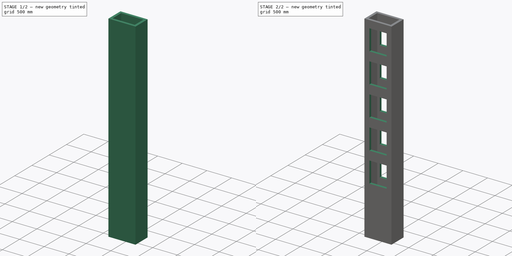
[diagram: build sequence overview — one tinted view per stage of 2, left to right]
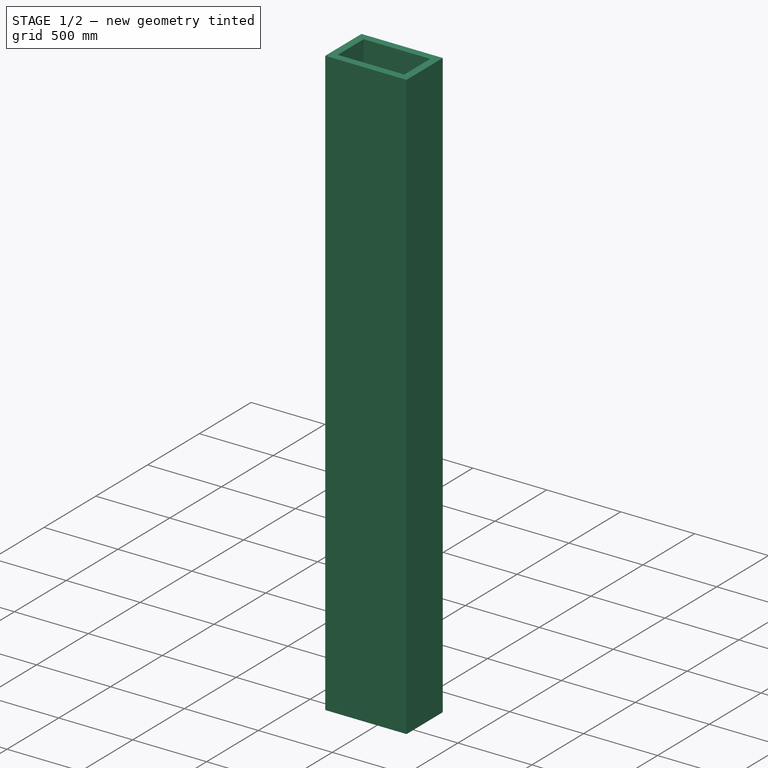
[diagram: stage 1 of 2 — iso view after this stage's code; geometry added in this stage tinted green]
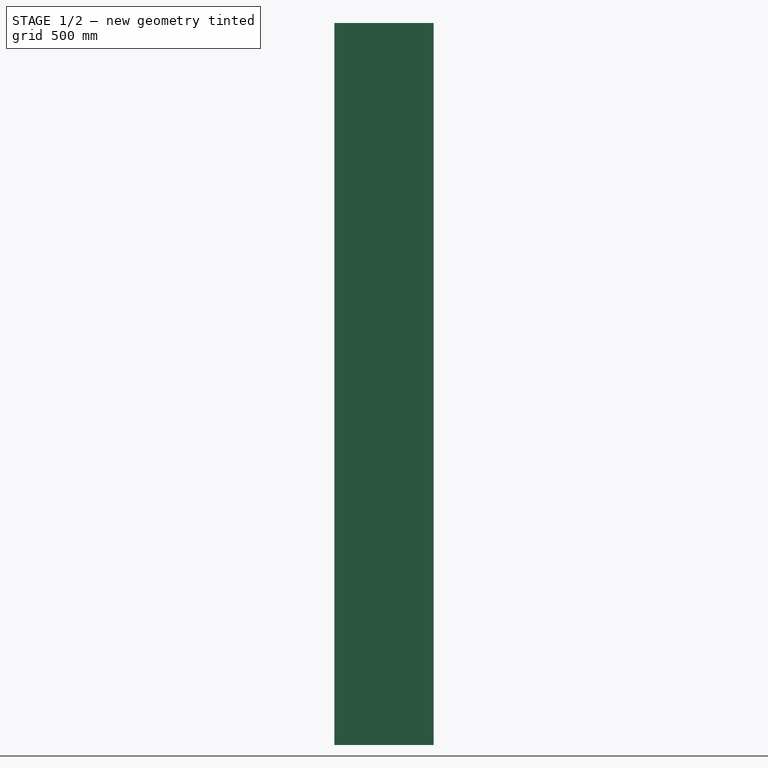
[diagram: stage 1 of 2 — front view after this stage's code; geometry added in this stage tinted green]
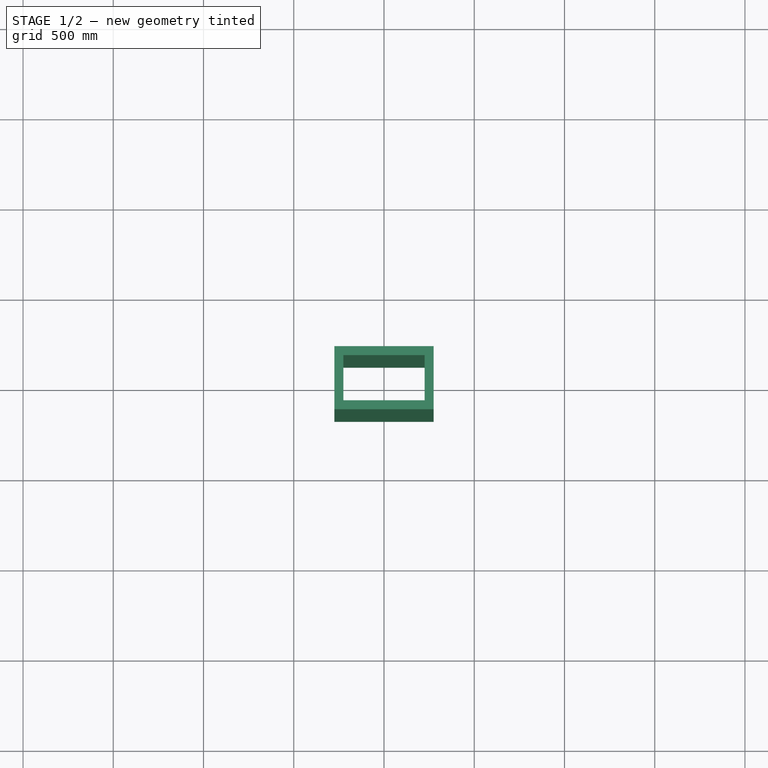
[diagram: stage 1 of 2 — top view after this stage's code; geometry added in this stage tinted green]
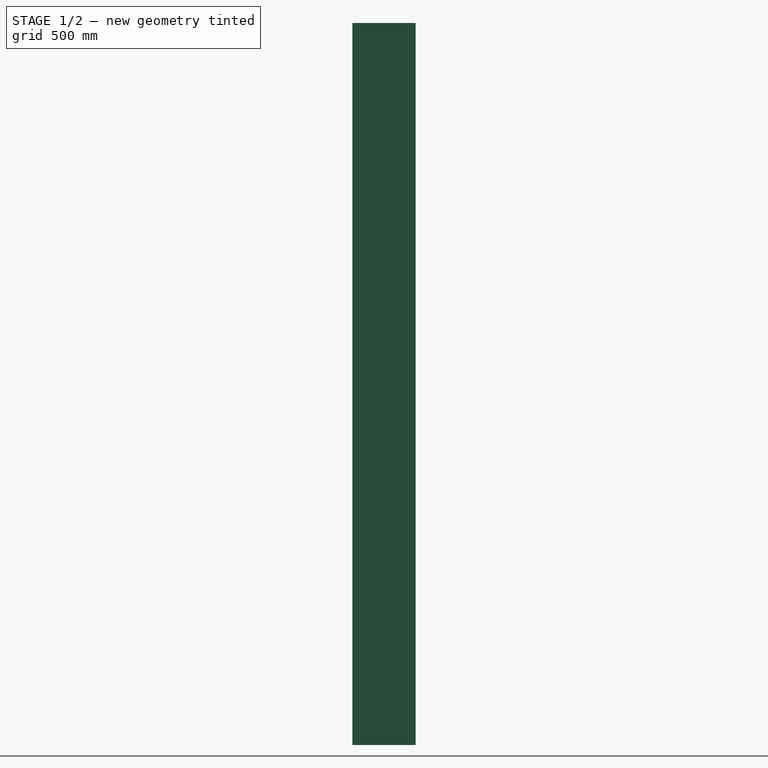
[diagram: stage 1 of 2 — right view after this stage's code; geometry added in this stage tinted green]
FCSTD DOCUMENT  (FreeCAD 0.17R5235 (Git shallow))
Label: MatLourd
License: All rights reserved
LicenseURL: http://en.wikipedia.org/wiki/All_rights_reserved
objects: Sketcher::SketchObject×2, PartDesign::Pocket×2, Part::Part2DObjectPython×1, PartDesign::Pad×1, PartDesign::LinearPattern×1, PartDesign::Body×1
note: 11 computed .brp shape members not serialized (recipe doc carries the construction recipe); baked Part::Feature solids carry a one-line shape summary decoded from their .brp

FEATURE [Sketcher::SketchObject] Sketch  label="Mat_Sketch"
  MapMode = 5
  Support = -> [XY_Plane]
  sketch-geometry (4):
    g0: LineSegment StartX=-225 StartY=125 StartZ=0 EndX=225 EndY=125 EndZ=0
    g1: LineSegment StartX=225 StartY=125 StartZ=0 EndX=225 EndY=-125 EndZ=0
    g2: LineSegment StartX=225 StartY=-125 StartZ=0 EndX=-225 EndY=-125 EndZ=0
    g3: LineSegment StartX=-225 StartY=-125 StartZ=0 EndX=-225 EndY=125 EndZ=0
  constraints (12):
    c: Coincident(g0,g1)
    c: Coincident(g1,g2)
    c: Coincident(g2,g3)
    c: Coincident(g3,g0)
    c: Horizontal(g0)
    c: Horizontal(g2)
    c: Vertical(g1)
    c: Vertical(g3)
    c: DistanceX(g0,g0) = 450
    c: DistanceY(g1,g0) = 250
    c: Symmetric(g0,g0,g-2)
    c: Symmetric(g0,g2,g-1)
FEATURE [Part::Part2DObjectPython] DWire  # Draft 2D object (typed FeaturePython)
  ChamferSize = 0
  Closed = true
  End = (-275,-175,0)
  FilletRadius = 0
  Length = 1800
  MakeFace = true
  Points = (4) [(-275,175,0),(275,175,0),(275,-175,0),(-275,-175,0)]
  Start = (-275,175,0)
  Subdivisions = 0
FEATURE [PartDesign::Pad] Pad001
  Length = 4000
  Length2 = 100
  Profile = -> DWire
  Type = 0
FEATURE [PartDesign::Pocket] Pocket
  BaseFeature = -> Pad001
  Length = 4000
  Length2 = 100
  Profile = -> Sketch
  Reversed = true
  Type = 0
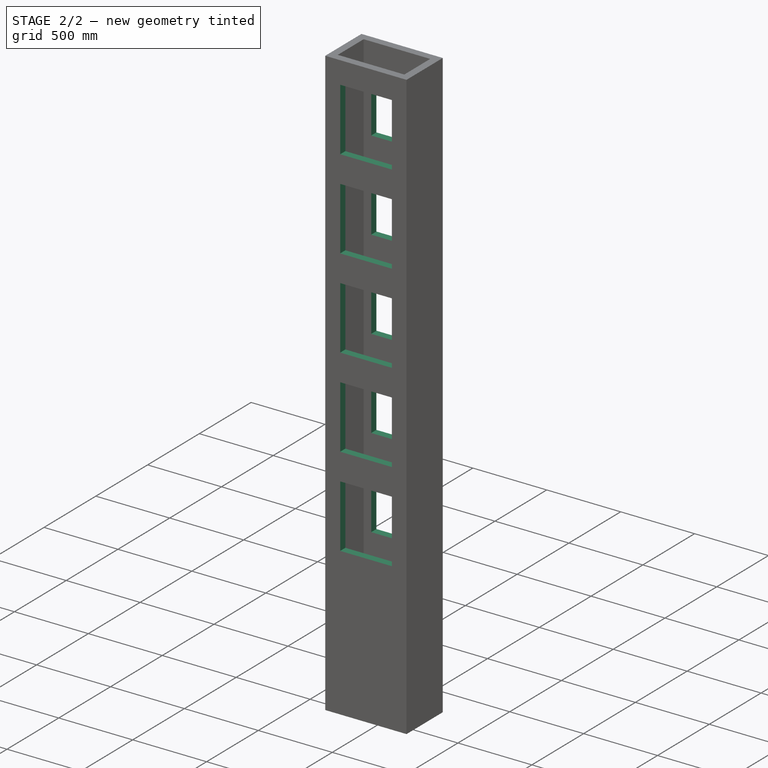
[diagram: stage 2 of 2 — iso view after this stage's code; geometry added in this stage tinted green]
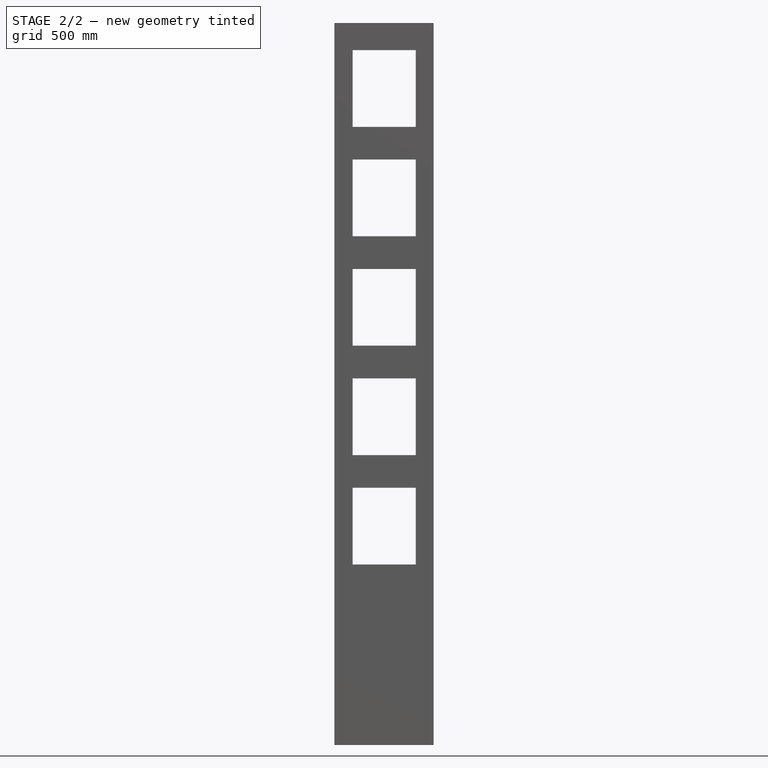
[diagram: stage 2 of 2 — front view after this stage's code; geometry added in this stage tinted green]
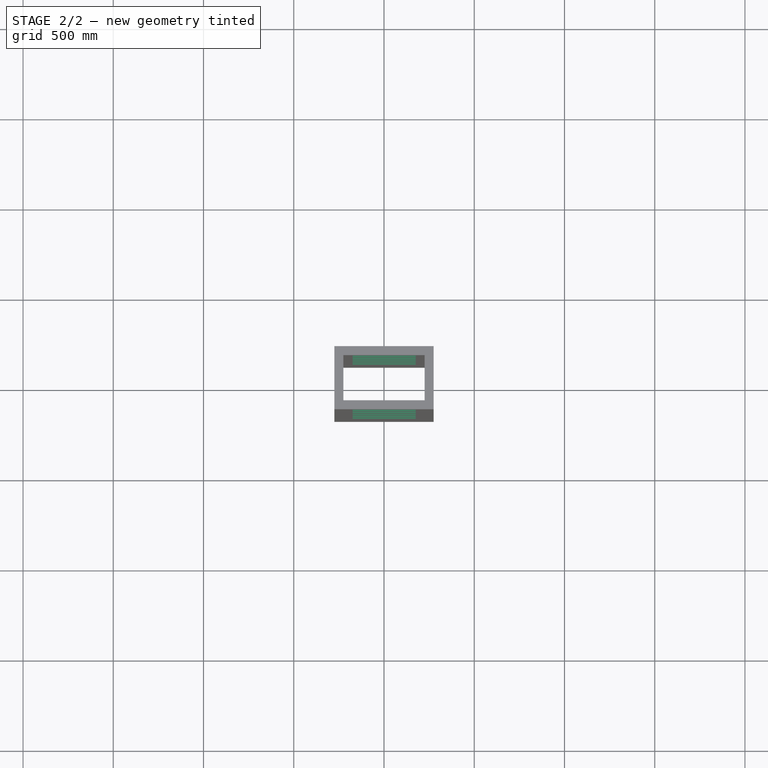
[diagram: stage 2 of 2 — top view after this stage's code; geometry added in this stage tinted green]
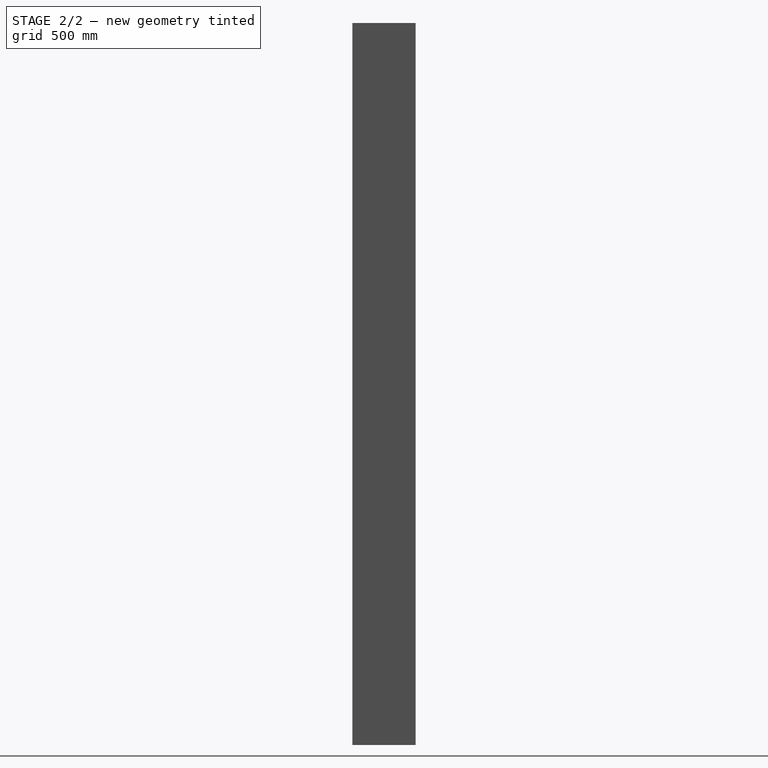
[diagram: stage 2 of 2 — right view after this stage's code; geometry added in this stage tinted green]
FEATURE [Sketcher::SketchObject] Sketch001
  MapMode = 5
  Placement = pos=(0,-175,0) rot=(1,0,0;1.5708rad)
  Support = -> [Pocket]
  sketch-geometry (4):
    g0: LineSegment StartX=-173.788 StartY=1425 StartZ=0 EndX=176.212 EndY=1425 EndZ=0
    g1: LineSegment StartX=176.212 StartY=1425 StartZ=0 EndX=176.212 EndY=1000 EndZ=0
    g2: LineSegment StartX=176.212 StartY=1000 StartZ=0 EndX=-173.788 EndY=1000 EndZ=0
    g3: LineSegment StartX=-173.788 StartY=1000 StartZ=0 EndX=-173.788 EndY=1425 EndZ=0
  constraints (11):
    c: Coincident(g0,g1)
    c: Coincident(g1,g2)
    c: Coincident(g2,g3)
    c: Coincident(g3,g0)
    c: Horizontal(g0)
    c: Horizontal(g2)
    c: Vertical(g1)
    c: Vertical(g3)
    c: DistanceY(g1,g0) = 425
    c: DistanceX(g2,g1) = 350
    c: DistanceY(g-1,g1) = 1000
FEATURE [PartDesign::Pocket] Pocket001  label="Trou_Pocket"
  BaseFeature = -> Pocket
  Length = 3500
  Length2 = 100
  Profile = -> Sketch001
  Type = 0
FEATURE [PartDesign::LinearPattern] LinearPattern
  BaseFeature = -> Pocket001
  Direction = -> Z_Axis
  Length = 2425
  Occurrences = 5
  Originals = -> [Pocket001]
FEATURE [PartDesign::Body] Body
  Group = -> [Sketch,Pad001,Pocket,Sketch001,Pocket001,LinearPattern]
  Origin = -> Origin
  Tip = -> LinearPattern
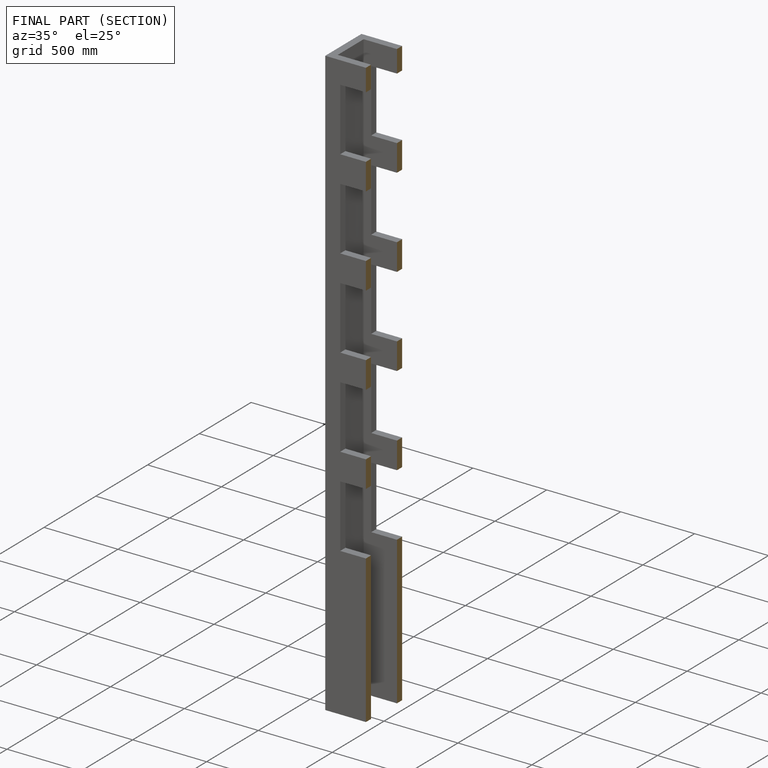
[diagram: finished part — half-section view (interior)]
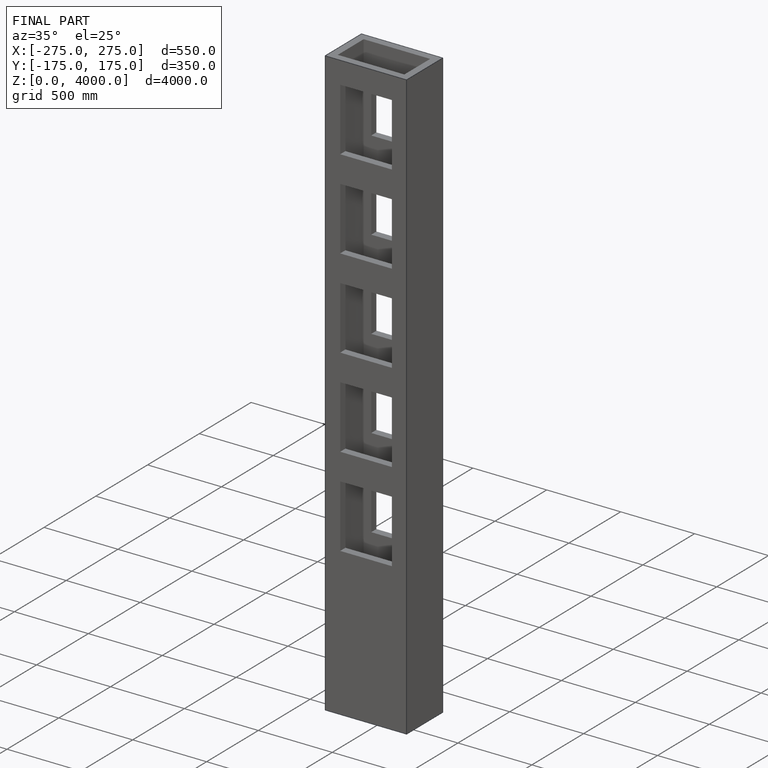
[diagram: finished part — iso view with bounding-box wireframe]
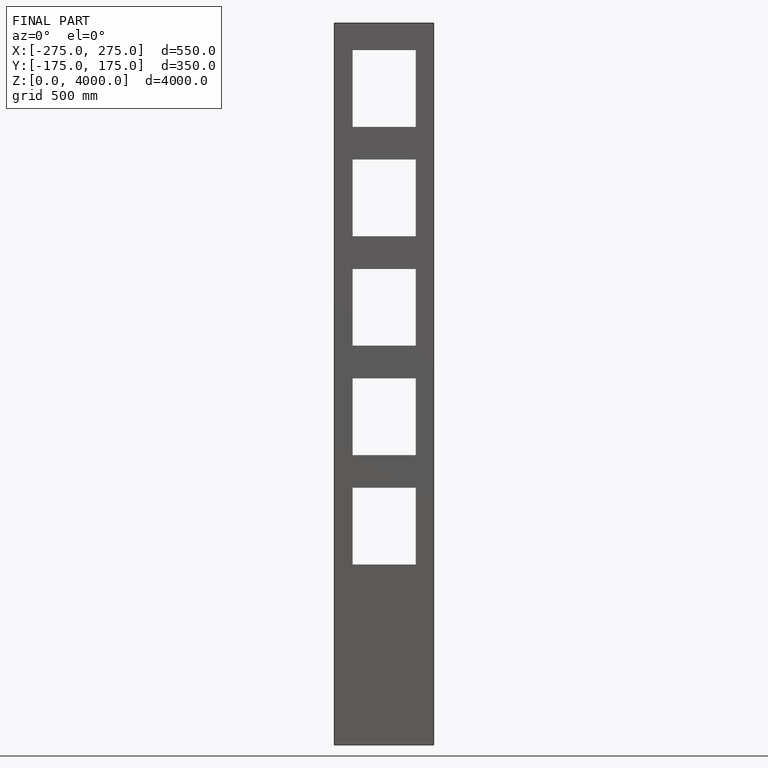
[diagram: finished part — front view with bounding-box wireframe]
